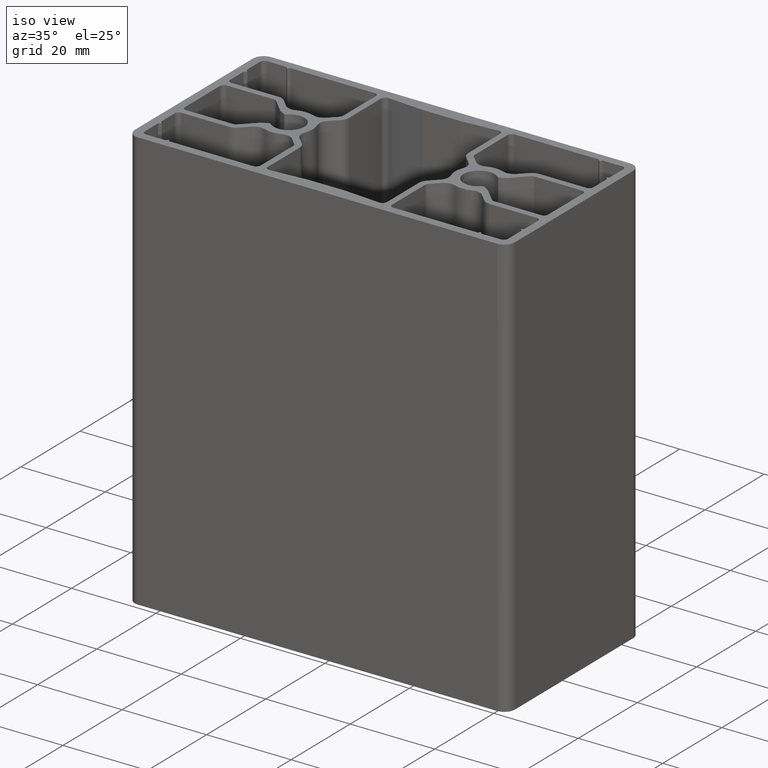
[diagram: clean part render]
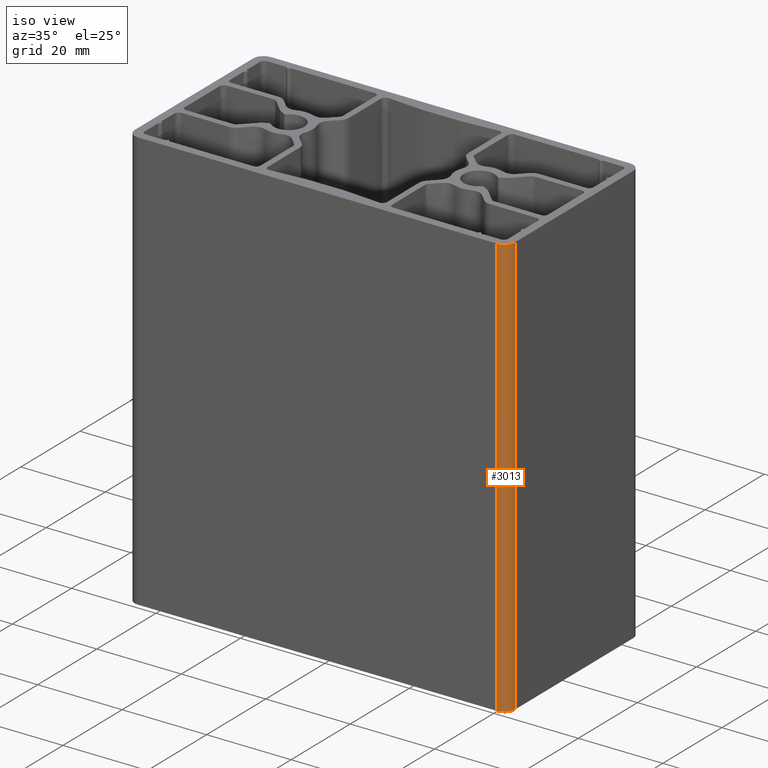
[diagram: same view with one face highlighted and labeled with its STEP entity id]
A machine part, iso view. The second image highlights one B-rep face of the part: STEP entity #3013.
In plain terms, the highlighted cylindrical surface (edge-blend (fillet) strip) has radius 2.5 mm, axis along (0, 0, 1).
Its self-contained STEP definition (entity closure, byte-faithful):
#157=CIRCLE('',#3294,2.5);
#158=CIRCLE('',#3295,2.5);
#229=CYLINDRICAL_SURFACE('',#3293,2.5);
#373=FACE_OUTER_BOUND('',#523,.T.);
#523=EDGE_LOOP('',(#2463,#2464,#2465,#2466));
#839=LINE('',#5039,#1147);
#840=LINE('',#5042,#1148);
#1147=VECTOR('',#4145,100.);
#1148=VECTOR('',#4148,100.);
#1443=VERTEX_POINT('',#5035);
#1444=VERTEX_POINT('',#5036);
#1445=VERTEX_POINT('',#5038);
#1446=VERTEX_POINT('',#5040);
#1879=EDGE_CURVE('',#1443,#1444,#157,.T.);
#1880=EDGE_CURVE('',#1445,#1444,#839,.T.);
#1881=EDGE_CURVE('',#1446,#1445,#158,.T.);
#1882=EDGE_CURVE('',#1446,#1443,#840,.T.);
#2463=ORIENTED_EDGE('',*,*,#1879,.T.);
#2464=ORIENTED_EDGE('',*,*,#1880,.F.);
#2465=ORIENTED_EDGE('',*,*,#1881,.F.);
#2466=ORIENTED_EDGE('',*,*,#1882,.T.);
#3013=ADVANCED_FACE('',(#373),#229,.T.);
#3293=AXIS2_PLACEMENT_3D('',#5034,#4141,#4142);
#3294=AXIS2_PLACEMENT_3D('',#5037,#4143,#4144);
#3295=AXIS2_PLACEMENT_3D('',#5041,#4146,#4147);
#4141=DIRECTION('center_axis',(0.,0.,1.));
#4142=DIRECTION('ref_axis',(0.,-1.,0.));
#4143=DIRECTION('center_axis',(0.,0.,-1.));
#4144=DIRECTION('ref_axis',(0.,-1.,0.));
#4145=DIRECTION('',(0.,0.,1.));
#4146=DIRECTION('center_axis',(0.,0.,-1.));
#4147=DIRECTION('ref_axis',(0.,-1.,0.));
#4148=DIRECTION('',(0.,0.,1.));
#5034=CARTESIAN_POINT('Origin',(42.5,-20.,0.));
#5035=CARTESIAN_POINT('',(45.,-20.,100.));
#5036=CARTESIAN_POINT('',(42.5,-22.5,100.));
#5037=CARTESIAN_POINT('Origin',(42.5,-20.,100.));
#5038=CARTESIAN_POINT('',(42.5,-22.5,0.));
#5039=CARTESIAN_POINT('',(42.5,-22.5,0.));
#5040=CARTESIAN_POINT('',(45.,-20.,0.));
#5041=CARTESIAN_POINT('Origin',(42.5,-20.,0.));
#5042=CARTESIAN_POINT('',(45.,-20.,0.));